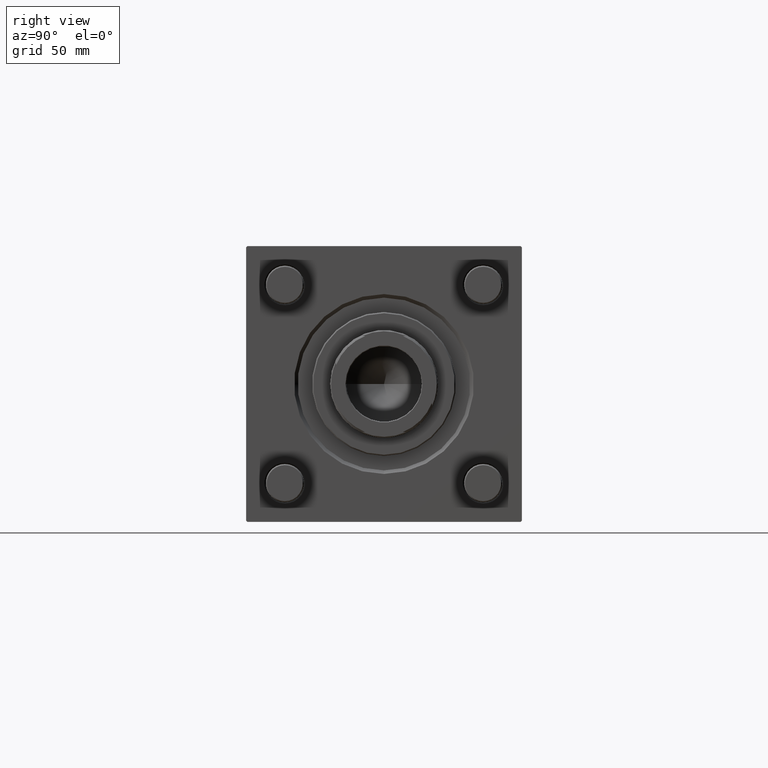
[diagram: clean part render]
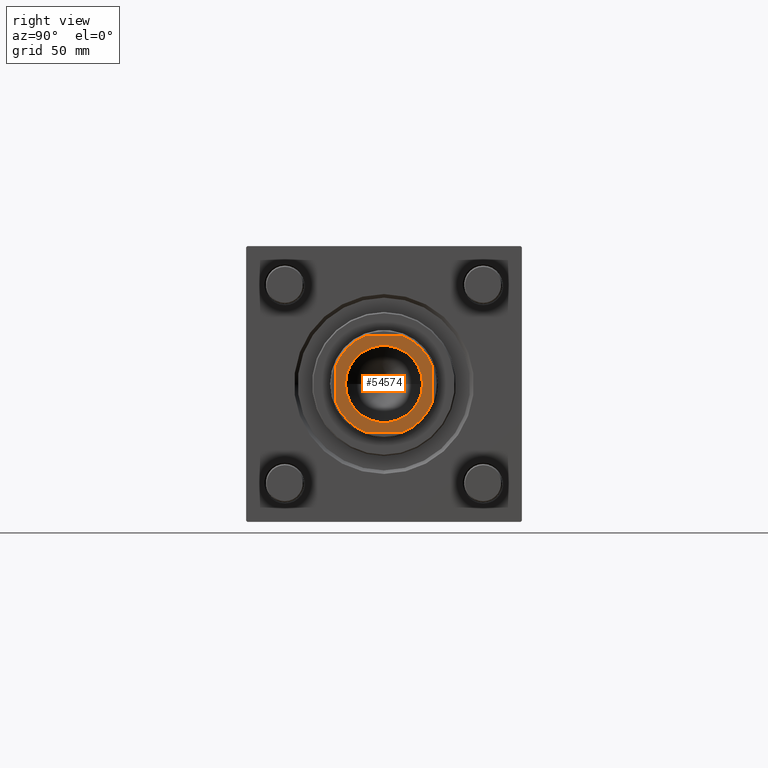
[diagram: same view with one face highlighted and labeled with its STEP entity id]
A machine part, right view. The second image highlights one B-rep face of the part: STEP entity #54574.
In plain terms, the highlighted planar face has unit normal (1, 0, 0).
Its self-contained STEP definition (entity closure, byte-faithful):
#667 = CARTESIAN_POINT ( 'NONE',  ( -19.99999999999999645, -20.00000000000000000, 166.0000000000000000 ) ) ;
#768 = LINE ( 'NONE', #6231, #12536 ) ;
#954 = LINE ( 'NONE', #667, #12434 ) ;
#1738 = ORIENTED_EDGE ( 'NONE', *, *, #7867, .T. ) ;
#1820 = AXIS2_PLACEMENT_3D ( 'NONE', #10249, #20034, #37671 ) ;
#3807 = AXIS2_PLACEMENT_3D ( 'NONE', #6818, #29037, #42353 ) ;
#3931 = CARTESIAN_POINT ( 'NONE',  ( 16.05000000000000782, 0.000000000000000000, 166.0000000000000000 ) ) ;
#6231 = CARTESIAN_POINT ( 'NONE',  ( -20.00000000000000355, 20.00000000000000000, 166.0000000000000000 ) ) ;
#6433 = DIRECTION ( 'NONE',  ( 0.000000000000000000, -0.000000000000000000, -1.000000000000000000 ) ) ;
#6618 = CARTESIAN_POINT ( 'NONE',  ( 0.000000000000000000, 0.000000000000000000, 166.0000000000000000 ) ) ;
#6736 = CARTESIAN_POINT ( 'NONE',  ( 0.000000000000000000, 0.000000000000000000, 166.0000000000000000 ) ) ;
#6773 = CARTESIAN_POINT ( 'NONE',  ( 20.00000000000000000, -7.889866919029865144, 166.0000000000000000 ) ) ;
#6818 = CARTESIAN_POINT ( 'NONE',  ( 0.000000000000000000, 0.000000000000000000, 166.0000000000000000 ) ) ;
#6840 = ORIENTED_EDGE ( 'NONE', *, *, #9956, .T. ) ;
#7867 = EDGE_CURVE ( 'NONE', #37312, #39766, #53038, .T. ) ;
#8175 = VERTEX_POINT ( 'NONE', #18575 ) ;
#8196 = EDGE_CURVE ( 'NONE', #20659, #12524, #954, .T. ) ;
#8361 = CARTESIAN_POINT ( 'NONE',  ( 7.889866919030000147, 20.00000000000000000, 166.0000000000000000 ) ) ;
#9208 = EDGE_CURVE ( 'NONE', #39766, #37312, #42907, .T. ) ;
#9947 = VERTEX_POINT ( 'NONE', #46207 ) ;
#9956 = EDGE_CURVE ( 'NONE', #9947, #20659, #31837, .T. ) ;
#10249 = CARTESIAN_POINT ( 'NONE',  ( 0.000000000000000000, 0.000000000000000000, 166.0000000000000000 ) ) ;
#10938 = EDGE_LOOP ( 'NONE', ( #26786, #46111, #48109, #22136, #39039, #6840, #50263, #54177 ) ) ;
#11063 = CARTESIAN_POINT ( 'NONE',  ( 0.000000000000000000, 0.000000000000000000, 166.0000000000000000 ) ) ;
#11238 = EDGE_CURVE ( 'NONE', #33684, #8175, #17803, .T. ) ;
#11441 = PLANE ( 'NONE',  #3807 ) ;
#12434 = VECTOR ( 'NONE', #48640, 1000.000000000000000 ) ;
#12524 = VERTEX_POINT ( 'NONE', #52219 ) ;
#12536 = VECTOR ( 'NONE', #19236, 1000.000000000000000 ) ;
#13481 = DIRECTION ( 'NONE',  ( -1.734723475976807094E-16, 1.000000000000000000, -0.000000000000000000 ) ) ;
#15231 = CARTESIAN_POINT ( 'NONE',  ( 0.000000000000000000, 0.000000000000000000, 166.0000000000000000 ) ) ;
#15678 = AXIS2_PLACEMENT_3D ( 'NONE', #29177, #37298, #51458 ) ;
#16368 = DIRECTION ( 'NONE',  ( 0.000000000000000000, -0.000000000000000000, -1.000000000000000000 ) ) ;
#17051 = EDGE_CURVE ( 'NONE', #50450, #42348, #47590, .T. ) ;
#17803 = LINE ( 'NONE', #47873, #42975 ) ;
#18575 = CARTESIAN_POINT ( 'NONE',  ( 20.00000000000000000, 7.889866919030001924, 166.0000000000000000 ) ) ;
#18888 = DIRECTION ( 'NONE',  ( -0.000000000000000000, 0.000000000000000000, 1.000000000000000000 ) ) ;
#19236 = DIRECTION ( 'NONE',  ( 1.734723475976807094E-16, -1.000000000000000000, 0.000000000000000000 ) ) ;
#19388 = ORIENTED_EDGE ( 'NONE', *, *, #9208, .T. ) ;
#20034 = DIRECTION ( 'NONE',  ( -0.000000000000000000, 0.000000000000000000, 1.000000000000000000 ) ) ;
#20186 = DIRECTION ( 'NONE',  ( 1.000000000000000000, 0.000000000000000000, 0.000000000000000000 ) ) ;
#20659 = VERTEX_POINT ( 'NONE', #24642 ) ;
#20983 = VECTOR ( 'NONE', #21580, 1000.000000000000000 ) ;
#21156 = CARTESIAN_POINT ( 'NONE',  ( -7.889866919029998371, 20.00000000000000000, 166.0000000000000000 ) ) ;
#21580 = DIRECTION ( 'NONE',  ( -1.000000000000000000, -0.000000000000000000, -0.000000000000000000 ) ) ;
#22136 = ORIENTED_EDGE ( 'NONE', *, *, #38949, .T. ) ;
#24642 = CARTESIAN_POINT ( 'NONE',  ( -7.889866919029998371, -20.00000000000000000, 166.0000000000000000 ) ) ;
#26786 = ORIENTED_EDGE ( 'NONE', *, *, #11238, .T. ) ;
#28664 = DIRECTION ( 'NONE',  ( 1.000000000000000000, 0.000000000000000000, 0.000000000000000000 ) ) ;
#28697 = EDGE_CURVE ( 'NONE', #8175, #50450, #40583, .T. ) ;
#29037 = DIRECTION ( 'NONE',  ( -0.000000000000000000, 0.000000000000000000, 1.000000000000000000 ) ) ;
#29177 = CARTESIAN_POINT ( 'NONE',  ( 0.000000000000000000, 0.000000000000000000, 166.0000000000000000 ) ) ;
#29328 = FACE_OUTER_BOUND ( 'NONE', #10938, .T. ) ;
#31423 = EDGE_CURVE ( 'NONE', #49409, #9947, #768, .T. ) ;
#31501 = CARTESIAN_POINT ( 'NONE',  ( -20.00000000000000000, 7.889866919029994818, 166.0000000000000000 ) ) ;
#31837 = CIRCLE ( 'NONE', #48475, 21.50000000000009237 ) ;
#32451 = DIRECTION ( 'NONE',  ( 1.000000000000000000, 0.000000000000000000, 0.000000000000000000 ) ) ;
#33684 = VERTEX_POINT ( 'NONE', #6773 ) ;
#33985 = DIRECTION ( 'NONE',  ( 1.000000000000000000, 0.000000000000000000, 0.000000000000000000 ) ) ;
#37287 = AXIS2_PLACEMENT_3D ( 'NONE', #15231, #16368, #33985 ) ;
#37298 = DIRECTION ( 'NONE',  ( -0.000000000000000000, 0.000000000000000000, 1.000000000000000000 ) ) ;
#37312 = VERTEX_POINT ( 'NONE', #3931 ) ;
#37671 = DIRECTION ( 'NONE',  ( 1.000000000000000000, 0.000000000000000000, 0.000000000000000000 ) ) ;
#37817 = DIRECTION ( 'NONE',  ( -0.000000000000000000, 0.000000000000000000, 1.000000000000000000 ) ) ;
#38949 = EDGE_CURVE ( 'NONE', #42348, #49409, #39452, .T. ) ;
#39039 = ORIENTED_EDGE ( 'NONE', *, *, #31423, .T. ) ;
#39452 = CIRCLE ( 'NONE', #49603, 21.50000000000009237 ) ;
#39766 = VERTEX_POINT ( 'NONE', #52481 ) ;
#40583 = CIRCLE ( 'NONE', #15678, 21.50000000000009237 ) ;
#42348 = VERTEX_POINT ( 'NONE', #21156 ) ;
#42353 = DIRECTION ( 'NONE',  ( 1.000000000000000000, 0.000000000000000000, 0.000000000000000000 ) ) ;
#42907 = CIRCLE ( 'NONE', #50298, 16.05000000000000782 ) ;
#42975 = VECTOR ( 'NONE', #13481, 1000.000000000000000 ) ;
#43902 = EDGE_LOOP ( 'NONE', ( #1738, #19388 ) ) ;
#46111 = ORIENTED_EDGE ( 'NONE', *, *, #28697, .T. ) ;
#46207 = CARTESIAN_POINT ( 'NONE',  ( -20.00000000000000000, -7.889866919030001924, 166.0000000000000000 ) ) ;
#47590 = LINE ( 'NONE', #57136, #20983 ) ;
#47873 = CARTESIAN_POINT ( 'NONE',  ( 19.99999999999999645, 20.00000000000000000, 166.0000000000000000 ) ) ;
#48109 = ORIENTED_EDGE ( 'NONE', *, *, #17051, .T. ) ;
#48475 = AXIS2_PLACEMENT_3D ( 'NONE', #6618, #37817, #20186 ) ;
#48640 = DIRECTION ( 'NONE',  ( 1.000000000000000000, 0.000000000000000000, 0.000000000000000000 ) ) ;
#49113 = EDGE_CURVE ( 'NONE', #12524, #33684, #49818, .T. ) ;
#49409 = VERTEX_POINT ( 'NONE', #31501 ) ;
#49603 = AXIS2_PLACEMENT_3D ( 'NONE', #6736, #18888, #32451 ) ;
#49818 = CIRCLE ( 'NONE', #1820, 21.50000000000004263 ) ;
#50263 = ORIENTED_EDGE ( 'NONE', *, *, #8196, .T. ) ;
#50298 = AXIS2_PLACEMENT_3D ( 'NONE', #11063, #6433, #28664 ) ;
#50450 = VERTEX_POINT ( 'NONE', #8361 ) ;
#51458 = DIRECTION ( 'NONE',  ( 1.000000000000000000, 0.000000000000000000, 0.000000000000000000 ) ) ;
#51616 = FACE_BOUND ( 'NONE', #43902, .T. ) ;
#52219 = CARTESIAN_POINT ( 'NONE',  ( 7.889866919029868697, -20.00000000000000000, 166.0000000000000000 ) ) ;
#52481 = CARTESIAN_POINT ( 'NONE',  ( -16.05000000000000782, 1.965558112631502993E-15, 166.0000000000000000 ) ) ;
#53038 = CIRCLE ( 'NONE', #37287, 16.05000000000000782 ) ;
#54177 = ORIENTED_EDGE ( 'NONE', *, *, #49113, .T. ) ;
#54574 = ADVANCED_FACE ( 'NONE', ( #51616, #29328 ), #11441, .T. ) ;
#57136 = CARTESIAN_POINT ( 'NONE',  ( -20.00000000000000355, 20.00000000000000000, 166.0000000000000000 ) ) ;